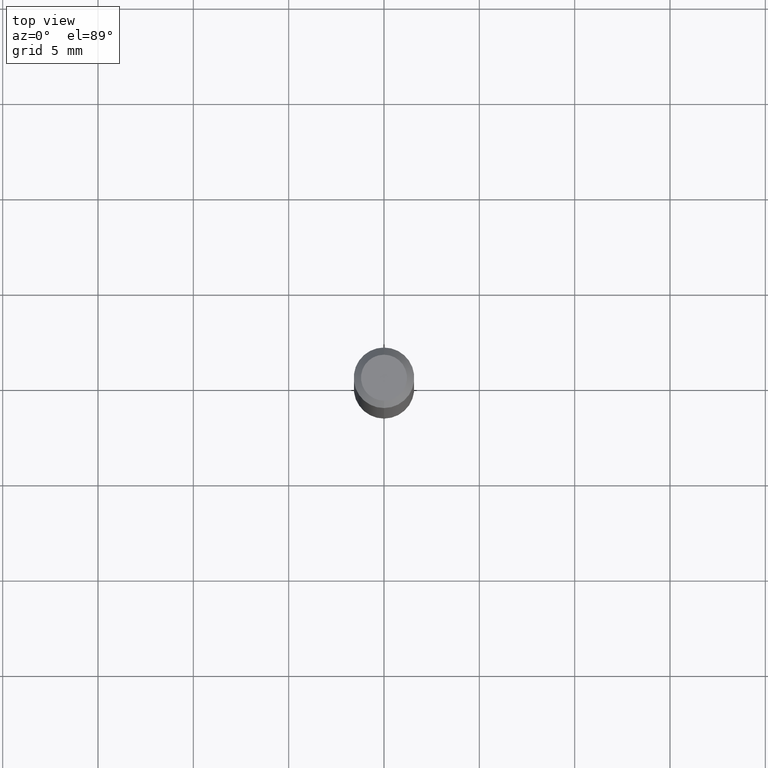
[diagram: clean part render]
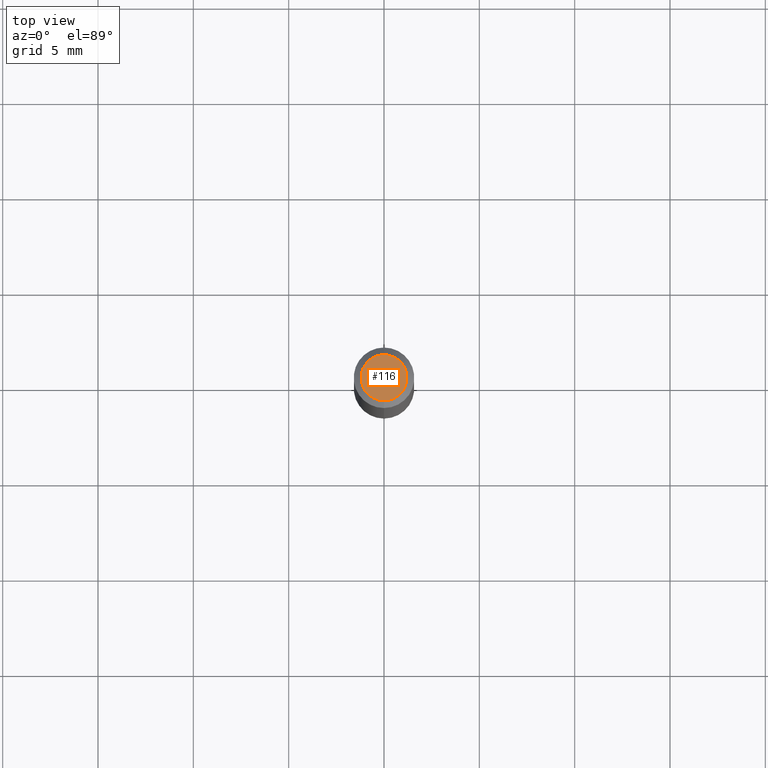
[diagram: same view with one face highlighted and labeled with its STEP entity id]
A machine part, top view. The second image highlights one B-rep face of the part: STEP entity #116.
In plain terms, the highlighted planar face has unit normal (0, -0, -1).
Its self-contained STEP definition (entity closure, byte-faithful):
#7 = EDGE_CURVE ( 'NONE', #459, #26, #87, .T. ) ;
#26 = VERTEX_POINT ( 'NONE', #230 ) ;
#34 = EDGE_CURVE ( 'NONE', #26, #459, #238, .T. ) ;
#56 = CARTESIAN_POINT ( 'NONE',  ( -5.856614666460352814E-45, 8.361744002769819647E-31, 2.394891434833919131E-16 ) ) ;
#60 = DIRECTION ( 'NONE',  ( -6.982962677686266711E-15, -1.000000000000000000, 3.491491881906409698E-15 ) ) ;
#87 = CIRCLE ( 'NONE', #380, 0.04749999999999999362 ) ;
#96 = CARTESIAN_POINT ( 'NONE',  ( -5.856614666460352814E-45, 8.361744002769819647E-31, 2.394891434833919131E-16 ) ) ;
#99 = DIRECTION ( 'NONE',  ( -6.982962677686266711E-15, -1.000000000000000000, 3.491491881906409698E-15 ) ) ;
#116 = ADVANCED_FACE ( 'NONE', ( #131 ), #452, .F. ) ;
#131 = FACE_OUTER_BOUND ( 'NONE', #426, .T. ) ;
#164 = DIRECTION ( 'NONE',  ( 6.982962677686265922E-15, 1.000000000000000000, -3.491491881906408909E-15 ) ) ;
#226 = CARTESIAN_POINT ( 'NONE',  ( 3.840629472727447874E-16, 0.04749999999999999362, 7.364327909283752044E-17 ) ) ;
#230 = CARTESIAN_POINT ( 'NONE',  ( -3.773273898774340269E-16, -0.04749999999999999362, 4.053350078739463550E-16 ) ) ;
#238 = CIRCLE ( 'NONE', #505, 0.04749999999999999362 ) ;
#254 = AXIS2_PLACEMENT_3D ( 'NONE', #439, #272, #164 ) ;
#261 = DIRECTION ( 'NONE',  ( -2.445461444003408996E-29, 3.491491881906408909E-15, 1.000000000000000000 ) ) ;
#272 = DIRECTION ( 'NONE',  ( 2.445461444003408716E-29, -3.491491881906408909E-15, -1.000000000000000000 ) ) ;
#304 = DIRECTION ( 'NONE',  ( -2.445461444003408996E-29, 3.491491881906408909E-15, 1.000000000000000000 ) ) ;
#329 = ORIENTED_EDGE ( 'NONE', *, *, #34, .T. ) ;
#332 = ORIENTED_EDGE ( 'NONE', *, *, #7, .T. ) ;
#380 = AXIS2_PLACEMENT_3D ( 'NONE', #96, #261, #60 ) ;
#426 = EDGE_LOOP ( 'NONE', ( #332, #329 ) ) ;
#439 = CARTESIAN_POINT ( 'NONE',  ( 3.316907271900976096E-16, 0.04749999999999999362, -4.610129264885844225E-17 ) ) ;
#452 = PLANE ( 'NONE',  #254 ) ;
#459 = VERTEX_POINT ( 'NONE', #226 ) ;
#505 = AXIS2_PLACEMENT_3D ( 'NONE', #56, #304, #99 ) ;